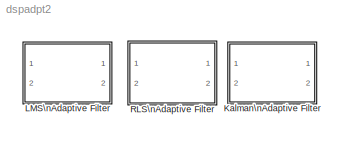
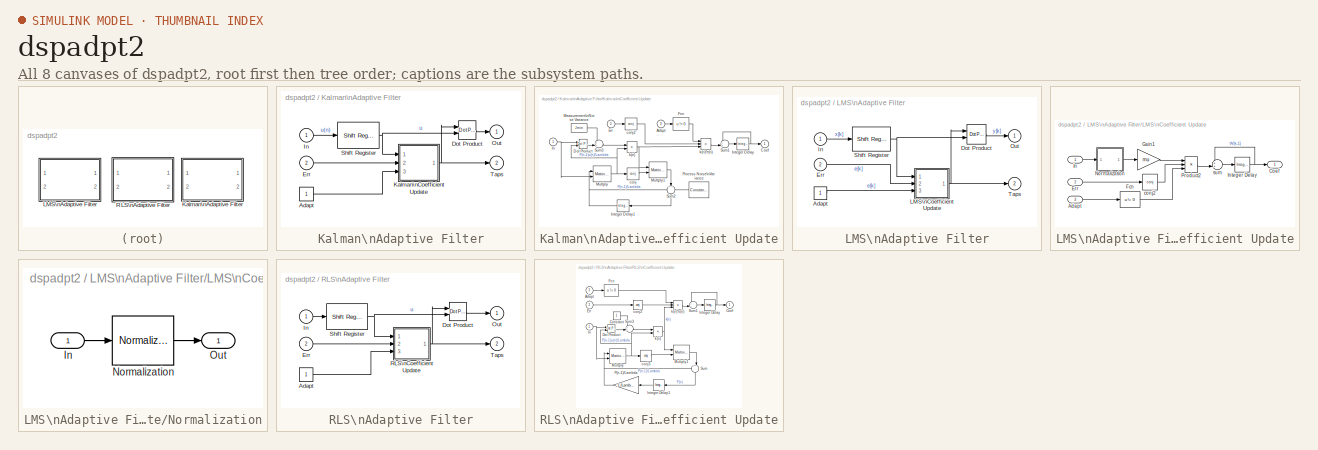
[diagram: thumbnail index - all 8 canvases of the model, root first then tree order]
MODEL dspadpt2
KIND library
BLOCK [SubSystem] Kalman\nAdaptive Filter
  MaskCallbackString = |||||
  MaskDescription = One-step Kalman predictor algorithm for adaptive FIR filtering of input signal.  If Adapt input checkbox is enabled, and the Adapt input port is zero, the algorithm stops adapting the filter coefficients.
  MaskDisplay = disp('Kalman')
  MaskEnableString = on,on,on,on,on,on
  MaskHelp = web(dspbhelp);
  MaskIconFrame = on
  MaskIconOpaque = off
  MaskIconRotate = none
  MaskIconUnits = autoscale
  MaskInitialization = if prod(size(ic0))==1, ic = ic0(ones(Ntaps,1)); else ic = ic0; end\nif prod(size(K0))==1, K = K0.*eye(Ntaps);\nelseif any(size(K0)==1), K = diag(K0);\nelse K=K0; end\ndspblkadpt('init');\n
  MaskPromptString = FIR filter length:|Measurement noise variance:|Process noise variance:|Initial value of filter taps:|Initial error correlation matrix:|Adapt input
  MaskSelfModifiable = on
  MaskStyleString = edit,edit,edit,edit,edit,checkbox
  MaskTunableValueString = off,on,on,off,off,on
  MaskType = Kalman Adaptive Filter
  MaskValueString = 5|0.3|0.1|0|0.5|off
  MaskVariables = Ntaps=@1;Jmin=@2;q=@3;ic0=@4;K0=@5;Adapt=@6;
  MaskVisibilityString = on,on,on,on,on,on
  Ports = [2, 2, 0, 0, 0]
  ShowPortLabels = on
BLOCK [Constant] Kalman\nAdaptive Filter/Adapt
  Value = 1
BLOCK [Reference] Kalman\nAdaptive Filter/Dot Product  REF=simulink3/Math/Dot Product
  Ports = [2, 1, 0, 0, 0]
  SourceBlock = simulink3/Math/Dot Product
  SourceType = Dot Product
BLOCK [Inport] Kalman\nAdaptive Filter/Err
  DataType = auto
  Interpolate = on
  Port = 2
  PortWidth = -1
  SampleTime = -1
  SignalType = auto
BLOCK [Inport] Kalman\nAdaptive Filter/In
  DataType = auto
  Interpolate = on
  Port = 1
  PortWidth = -1
  SampleTime = -1
  SignalType = auto
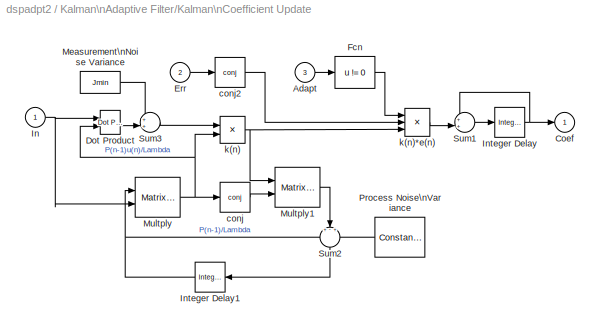
BLOCK [SubSystem] Kalman\nAdaptive Filter/Kalman\nCoefficient Update
  Ports = [3, 1, 0, 0, 0]
  ShowPortLabels = on
BLOCK [Inport] Kalman\nAdaptive Filter/Kalman\nCoefficient Update/Adapt
  DataType = auto
  Interpolate = on
  Port = 3
  PortWidth = -1
  SampleTime = -1
  SignalType = auto
BLOCK [Outport] Kalman\nAdaptive Filter/Kalman\nCoefficient Update/Coef
  InitialOutput = 0
  OutputWhenDisabled = held
  Port = 1
BLOCK [Reference] Kalman\nAdaptive Filter/Kalman\nCoefficient Update/Dot Product  REF=simulink3/Math/Dot Product
  Ports = [2, 1, 0, 0, 0]
  SourceBlock = simulink3/Math/Dot Product
  SourceType = Dot Product
BLOCK [Inport] Kalman\nAdaptive Filter/Kalman\nCoefficient Update/Err
  DataType = auto
  Interpolate = on
  Port = 2
  PortWidth = -1
  SampleTime = -1
  SignalType = auto
BLOCK [Fcn] Kalman\nAdaptive Filter/Kalman\nCoefficient Update/Fcn
  Expr = u != 0
BLOCK [Inport] Kalman\nAdaptive Filter/Kalman\nCoefficient Update/In
  DataType = auto
  Interpolate = on
  Port = 1
  PortWidth = -1
  SampleTime = -1
  SignalType = auto
BLOCK [Reference] Kalman\nAdaptive Filter/Kalman\nCoefficient Update/Integer Delay  REF=dspbdsp2/Integer Delay
  Ports = [1, 1, 0, 0, 0]
  SourceBlock = dspbdsp2/Integer Delay
  SourceType = Integer Delay
  delay = 1
  df = on
  frame = off
  ic = ic
  numChans = 1
BLOCK [Reference] Kalman\nAdaptive Filter/Kalman\nCoefficient Update/Integer Delay1  REF=dspbdsp2/Integer Delay
  Ports = [1, 1, 0, 0, 0]
  SourceBlock = dspbdsp2/Integer Delay
  SourceType = Integer Delay
  delay = 1
  df = on
  frame = off
  ic = K
  numChans = 1
BLOCK [Constant] Kalman\nAdaptive Filter/Kalman\nCoefficient Update/Measurement\nNoise Variance
  Value = Jmin
BLOCK [Reference] Kalman\nAdaptive Filter/Kalman\nCoefficient Update/Multply  REF=dspmtrx2/Matrix\nMultiplication
  Asize = [Ntaps Ntaps]
  Bcols = 1
  Ports = [2, 1, 0, 0, 0]
  SourceBlock = dspmtrx2/Matrix\nMultiplication
  SourceType = Matrix Multiplication
BLOCK [Reference] Kalman\nAdaptive Filter/Kalman\nCoefficient Update/Multply1  REF=dspmtrx2/Matrix\nMultiplication
  Asize = [Ntaps 1]
  Bcols = Ntaps
  Ports = [2, 1, 0, 0, 0]
  SourceBlock = dspmtrx2/Matrix\nMultiplication
  SourceType = Matrix Multiplication
BLOCK [Reference] Kalman\nAdaptive Filter/Kalman\nCoefficient Update/Process Noise\nVariance  REF=dspmtrx2/Constant Diagonal\nMatrix
  Ports = [0, 1, 0, 0, 0]
  SourceBlock = dspmtrx2/Constant Diagonal\nMatrix
  SourceType = Constant Diagonal Matrix
  n = Ntaps
  q = q
BLOCK [Sum] Kalman\nAdaptive Filter/Kalman\nCoefficient Update/Sum1
  IconShape = round
  Inputs = ++|
  Ports = [2, 1, 0, 0, 0]
  SaturateOnIntegerOverflow = on
BLOCK [Sum] Kalman\nAdaptive Filter/Kalman\nCoefficient Update/Sum2
  IconShape = round
  Inputs = +-+
  Ports = [3, 1, 0, 0, 0]
  SaturateOnIntegerOverflow = on
BLOCK [Sum] Kalman\nAdaptive Filter/Kalman\nCoefficient Update/Sum3
  IconShape = round
  Inputs = ++|
  Ports = [2, 1, 0, 0, 0]
  SaturateOnIntegerOverflow = on
BLOCK [Math] Kalman\nAdaptive Filter/Kalman\nCoefficient Update/conj
  Operator = conj
  OutputSignalType = auto
  Ports = [1, 1, 0, 0, 0]
BLOCK [Math] Kalman\nAdaptive Filter/Kalman\nCoefficient Update/conj2
  Operator = conj
  OutputSignalType = auto
  Ports = [1, 1, 0, 0, 0]
BLOCK [Product] Kalman\nAdaptive Filter/Kalman\nCoefficient Update/k(n)
  Inputs = /*
  Ports = [2, 1, 0, 0, 0]
  SaturateOnIntegerOverflow = on
BLOCK [Product] Kalman\nAdaptive Filter/Kalman\nCoefficient Update/k(n)*e(n)
  Inputs = 3
  Ports = [3, 1, 0, 0, 0]
  SaturateOnIntegerOverflow = on
BLOCK [Outport] Kalman\nAdaptive Filter/Out
  InitialOutput = 0
  OutputWhenDisabled = held
  Port = 1
BLOCK [Reference] Kalman\nAdaptive Filter/Shift Register  REF=dspbuff2/Shift Register
  Ports = [1, 1, 0, 0, 0]
  SourceBlock = dspbuff2/Shift Register
  SourceType = Shift Register
  ic = 0
  siz = Ntaps
BLOCK [Outport] Kalman\nAdaptive Filter/Taps
  InitialOutput = 0
  OutputWhenDisabled = held
  Port = 2
BLOCK [SubSystem] LMS\nAdaptive Filter
  MaskCallbackString = ||||
  MaskDescription = Least mean-square (LMS) algorithm for adaptive FIR filtering of input signal.  Energy normalization may optionally be disabled. If Adapt input checkbox is enabled, and the Adapt input port is zero, the algorithm stops adapting the filter coefficients.
  MaskDisplay = disp(s);
  MaskEnableString = on,on,on,on,on
  MaskHelp = web(dspbhelp);
  MaskIconFrame = on
  MaskIconOpaque = off
  MaskIconRotate = none
  MaskIconUnits = autoscale
  MaskInitialization = if normalized, s='nLMS'; else s='LMS'; end\ndspblkadpt('init');\n
  MaskPromptString = FIR filter length:|Step-size, mu:|Initial value of filter taps:|Use normalization|Adapt input
  MaskSelfModifiable = on
  MaskStyleString = edit,edit,edit,checkbox,checkbox
  MaskTunableValueString = off,on,off,off,on
  MaskType = LMS Adaptive Filter
  MaskValueString = 32|.65|0.0|on|off
  MaskVariables = n=@1;mu=@2;ic=@3;normalized=@4;Adapt=@5;
  MaskVisibilityString = on,on,on,on,on
  Ports = [2, 2, 0, 0, 0]
  ShowPortLabels = on
BLOCK [Constant] LMS\nAdaptive Filter/Adapt
  Value = 1
BLOCK [Reference] LMS\nAdaptive Filter/Dot Product  REF=simulink3/Math/Dot Product
  Ports = [2, 1, 0, 0, 0]
  SourceBlock = simulink3/Math/Dot Product
  SourceType = Dot Product
BLOCK [Inport] LMS\nAdaptive Filter/Err
  DataType = auto
  Interpolate = on
  Port = 2
  PortWidth = -1
  SampleTime = -1
  SignalType = auto
BLOCK [Inport] LMS\nAdaptive Filter/In
  DataType = auto
  Interpolate = on
  Port = 1
  PortWidth = -1
  SampleTime = -1
  SignalType = auto
BLOCK [SubSystem] LMS\nAdaptive Filter/LMS\nCoefficient Update
  Ports = [3, 1, 0, 0, 0]
  ShowPortLabels = on
BLOCK [Inport] LMS\nAdaptive Filter/LMS\nCoefficient Update/Adapt
  DataType = auto
  Interpolate = on
  Port = 3
  PortWidth = -1
  SampleTime = -1
  SignalType = auto
BLOCK [Outport] LMS\nAdaptive Filter/LMS\nCoefficient Update/Coef
  InitialOutput = 0
  OutputWhenDisabled = held
  Port = 1
BLOCK [Inport] LMS\nAdaptive Filter/LMS\nCoefficient Update/Err
  DataType = auto
  Interpolate = on
  Port = 2
  PortWidth = -1
  SampleTime = -1
  SignalType = auto
BLOCK [Fcn] LMS\nAdaptive Filter/LMS\nCoefficient Update/Fcn
  Expr = u != 0
BLOCK [Gain] LMS\nAdaptive Filter/LMS\nCoefficient Update/Gain1
  Gain = mu
  SaturateOnIntegerOverflow = on
BLOCK [Inport] LMS\nAdaptive Filter/LMS\nCoefficient Update/In
  DataType = auto
  Interpolate = on
  Port = 1
  PortWidth = -1
  SampleTime = -1
  SignalType = auto
BLOCK [Reference] LMS\nAdaptive Filter/LMS\nCoefficient Update/Integer Delay  REF=dspbdsp2/Integer Delay
  Ports = [1, 1, 0, 0, 0]
  SourceBlock = dspbdsp2/Integer Delay
  SourceType = Integer Delay
  delay = 1
  df = on
  frame = off
  ic = ic
  numChans = 1
BLOCK [SubSystem] LMS\nAdaptive Filter/LMS\nCoefficient Update/Normalization
  MaskCallbackString = |||
  MaskDescription = Configurable subsystem holding blocks which may be replaced by virtual short-circuits (muxes) when not needed.
  MaskEnableString = on,on,on,on
  MaskHelp = \n
  MaskIconFrame = on
  MaskIconOpaque = on
  MaskIconRotate = none
  MaskIconUnits = autoscale
  MaskInitialization = opts.name = oname; opts.src = osrc; opts.args = oargs;\ndspskipblk(gcb,opts,replace);\n
  MaskPromptString = Relative name of blocks to replace:|Simulink path to each source block:|Parameter/value pairs to each block:|Replace with short-circuit:
  MaskSelfModifiable = on
  MaskStyleString = edit,edit,edit,edit
  MaskTunableValueString = off,off,off,off
  MaskType = Replaceable Contents
  MaskValueString = Normalization|dspvect2/Normalization|{'NormType','Squared 2-norm','Bias','1e-10'}|~normalized
  MaskVariables = oname=&1;osrc=&2;oargs=@3;replace=@4;
  MaskVisibilityString = on,on,on,on
  Ports = [1, 1, 0, 0, 0]
  ShowPortLabels = on
BLOCK [Inport] LMS\nAdaptive Filter/LMS\nCoefficient Update/Normalization/In
  DataType = auto
  Interpolate = on
  Port = 1
  PortWidth = -1
  SampleTime = -1
  SignalType = auto
BLOCK [Reference] LMS\nAdaptive Filter/LMS\nCoefficient Update/Normalization/Normalization  REF=dspvect2/Normalization
  Bias = 1e-10
  NormType = Squared 2-norm
  Ports = [1, 1, 0, 0, 0]
  SourceBlock = dspvect2/Normalization
  SourceType = Normalization
BLOCK [Outport] LMS\nAdaptive Filter/LMS\nCoefficient Update/Normalization/Out
  InitialOutput = 0
  OutputWhenDisabled = held
  Port = 1
BLOCK [Product] LMS\nAdaptive Filter/LMS\nCoefficient Update/Product2
  Inputs = 3
  Ports = [3, 1, 0, 0, 0]
  SaturateOnIntegerOverflow = on
BLOCK [Math] LMS\nAdaptive Filter/LMS\nCoefficient Update/conj2
  Operator = conj
  OutputSignalType = auto
  Ports = [1, 1, 0, 0, 0]
BLOCK [Sum] LMS\nAdaptive Filter/LMS\nCoefficient Update/sum
  IconShape = round
  Inputs = ++|
  Ports = [2, 1, 0, 0, 0]
  SaturateOnIntegerOverflow = on
BLOCK [Outport] LMS\nAdaptive Filter/Out
  InitialOutput = 0
  OutputWhenDisabled = held
  Port = 1
BLOCK [Reference] LMS\nAdaptive Filter/Shift Register  REF=dspbuff2/Shift Register
  Ports = [1, 1, 0, 0, 0]
  SourceBlock = dspbuff2/Shift Register
  SourceType = Shift Register
  ic = 0
  siz = n
BLOCK [Outport] LMS\nAdaptive Filter/Taps
  InitialOutput = 0
  OutputWhenDisabled = held
  Port = 2
BLOCK [SubSystem] RLS\nAdaptive Filter
  MaskCallbackString = ||||
  MaskDescription = Exponentially weighted recursive least-squares (RLS) algorithm for adaptive FIR filtering of input signal. If Adapt input checkbox is enabled, and the Adapt input port is zero, the algorithm stops adapting the filter coefficients.
  MaskDisplay = disp('RLS')
  MaskEnableString = on,on,on,on,on
  MaskHelp = web(dspbhelp);
  MaskIconFrame = on
  MaskIconOpaque = off
  MaskIconRotate = none
  MaskIconUnits = autoscale
  MaskInitialization = dspblkadpt('init');\n
  MaskPromptString = FIR filter length:|Memory weighting factor (0 to 1):|Initial value of filter taps:|Initial input variance estimate:|Adapt input
  MaskSelfModifiable = on
  MaskStyleString = edit,edit,edit,edit,checkbox
  MaskTunableValueString = off,on,off,off,on
  MaskType = RLS Adaptive Filter
  MaskValueString = 32|1.0|0.0|0.1|off
  MaskVariables = Ntaps=@1;Lambda=@2;ic=@3;phi0=@4;Adapt=@5;
  MaskVisibilityString = on,on,on,on,on
  Ports = [2, 2, 0, 0, 0]
  ShowPortLabels = on
BLOCK [Constant] RLS\nAdaptive Filter/Adapt
  Value = 1
BLOCK [Reference] RLS\nAdaptive Filter/Dot Product  REF=simulink3/Math/Dot Product
  Ports = [2, 1, 0, 0, 0]
  SourceBlock = simulink3/Math/Dot Product
  SourceType = Dot Product
BLOCK [Inport] RLS\nAdaptive Filter/Err
  DataType = auto
  Interpolate = on
  Port = 2
  PortWidth = -1
  SampleTime = -1
  SignalType = auto
BLOCK [Inport] RLS\nAdaptive Filter/In
  DataType = auto
  Interpolate = on
  Port = 1
  PortWidth = -1
  SampleTime = -1
  SignalType = auto
BLOCK [Outport] RLS\nAdaptive Filter/Out
  InitialOutput = 0
  OutputWhenDisabled = held
  Port = 1
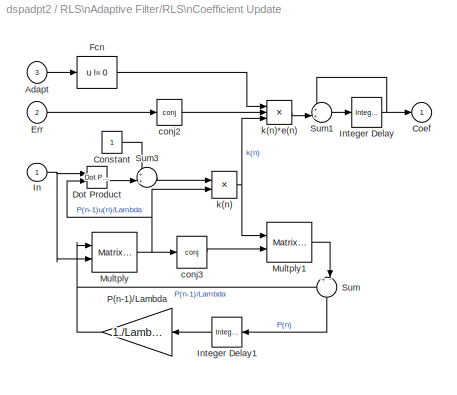
BLOCK [SubSystem] RLS\nAdaptive Filter/RLS\nCoefficient Update
  Ports = [3, 1, 0, 0, 0]
  ShowPortLabels = on
BLOCK [Inport] RLS\nAdaptive Filter/RLS\nCoefficient Update/Adapt
  DataType = auto
  Interpolate = on
  Port = 3
  PortWidth = -1
  SampleTime = -1
  SignalType = auto
BLOCK [Outport] RLS\nAdaptive Filter/RLS\nCoefficient Update/Coef
  InitialOutput = 0
  OutputWhenDisabled = held
  Port = 1
BLOCK [Constant] RLS\nAdaptive Filter/RLS\nCoefficient Update/Constant
  Value = 1
BLOCK [Reference] RLS\nAdaptive Filter/RLS\nCoefficient Update/Dot Product  REF=simulink3/Math/Dot Product
  Ports = [2, 1, 0, 0, 0]
  SourceBlock = simulink3/Math/Dot Product
  SourceType = Dot Product
BLOCK [Inport] RLS\nAdaptive Filter/RLS\nCoefficient Update/Err
  DataType = auto
  Interpolate = on
  Port = 2
  PortWidth = -1
  SampleTime = -1
  SignalType = auto
BLOCK [Fcn] RLS\nAdaptive Filter/RLS\nCoefficient Update/Fcn
  Expr = u != 0
BLOCK [Inport] RLS\nAdaptive Filter/RLS\nCoefficient Update/In
  DataType = auto
  Interpolate = on
  Port = 1
  PortWidth = -1
  SampleTime = -1
  SignalType = auto
BLOCK [Reference] RLS\nAdaptive Filter/RLS\nCoefficient Update/Integer Delay  REF=dspbdsp2/Integer Delay
  Ports = [1, 1, 0, 0, 0]
  SourceBlock = dspbdsp2/Integer Delay
  SourceType = Integer Delay
  delay = 1
  df = on
  frame = off
  ic = ic
  numChans = 1
BLOCK [Reference] RLS\nAdaptive Filter/RLS\nCoefficient Update/Integer Delay1  REF=dspbdsp2/Integer Delay
  Ports = [1, 1, 0, 0, 0]
  SourceBlock = dspbdsp2/Integer Delay
  SourceType = Integer Delay
  delay = 1
  df = on
  frame = off
  ic = eye(Ntaps)./phi0
  numChans = 1
BLOCK [Reference] RLS\nAdaptive Filter/RLS\nCoefficient Update/Multply  REF=dspmtrx2/Matrix\nMultiplication
  Asize = [Ntaps Ntaps]
  Bcols = 1
  Ports = [2, 1, 0, 0, 0]
  SourceBlock = dspmtrx2/Matrix\nMultiplication
  SourceType = Matrix Multiplication
BLOCK [Reference] RLS\nAdaptive Filter/RLS\nCoefficient Update/Multply1  REF=dspmtrx2/Matrix\nMultiplication
  Asize = [Ntaps 1]
  Bcols = Ntaps
  Ports = [2, 1, 0, 0, 0]
  SourceBlock = dspmtrx2/Matrix\nMultiplication
  SourceType = Matrix Multiplication
BLOCK [Gain] RLS\nAdaptive Filter/RLS\nCoefficient Update/P(n-1)//Lambda
  Gain = 1./Lambda
  SaturateOnIntegerOverflow = on
BLOCK [Sum] RLS\nAdaptive Filter/RLS\nCoefficient Update/Sum
  IconShape = round
  Inputs = +-|
  Ports = [2, 1, 0, 0, 0]
  SaturateOnIntegerOverflow = on
BLOCK [Sum] RLS\nAdaptive Filter/RLS\nCoefficient Update/Sum1
  IconShape = round
  Inputs = ++|
  Ports = [2, 1, 0, 0, 0]
  SaturateOnIntegerOverflow = on
BLOCK [Sum] RLS\nAdaptive Filter/RLS\nCoefficient Update/Sum3
  IconShape = round
  Inputs = ++|
  Ports = [2, 1, 0, 0, 0]
  SaturateOnIntegerOverflow = on
BLOCK [Math] RLS\nAdaptive Filter/RLS\nCoefficient Update/conj2
  Operator = conj
  OutputSignalType = auto
  Ports = [1, 1, 0, 0, 0]
BLOCK [Math] RLS\nAdaptive Filter/RLS\nCoefficient Update/conj3
  Operator = conj
  OutputSignalType = auto
  Ports = [1, 1, 0, 0, 0]
BLOCK [Product] RLS\nAdaptive Filter/RLS\nCoefficient Update/k(n)
  Inputs = /*
  Ports = [2, 1, 0, 0, 0]
  SaturateOnIntegerOverflow = on
BLOCK [Product] RLS\nAdaptive Filter/RLS\nCoefficient Update/k(n)*e(n)
  Inputs = 3
  Ports = [3, 1, 0, 0, 0]
  SaturateOnIntegerOverflow = on
BLOCK [Reference] RLS\nAdaptive Filter/Shift Register  REF=dspbuff2/Shift Register
  Ports = [1, 1, 0, 0, 0]
  SourceBlock = dspbuff2/Shift Register
  SourceType = Shift Register
  ic = 0
  siz = Ntaps
BLOCK [Outport] RLS\nAdaptive Filter/Taps
  InitialOutput = 0
  OutputWhenDisabled = held
  Port = 2
LINE Kalman\nAdaptive Filter/Adapt:1 -> Kalman\nAdaptive Filter/Kalman\nCoefficient Update:3
LINE Kalman\nAdaptive Filter/Dot Product:1 -> Kalman\nAdaptive Filter/Out:1
LINE Kalman\nAdaptive Filter/Err:1 -> Kalman\nAdaptive Filter/Kalman\nCoefficient Update:2
LINE Kalman\nAdaptive Filter/In:1 -> Kalman\nAdaptive Filter/Shift Register:1
LINE Kalman\nAdaptive Filter/Kalman\nCoefficient Update/Adapt:1 -> Kalman\nAdaptive Filter/Kalman\nCoefficient Update/Fcn:1
LINE Kalman\nAdaptive Filter/Kalman\nCoefficient Update/Dot Product:1 -> Kalman\nAdaptive Filter/Kalman\nCoefficient Update/Sum3:2
LINE Kalman\nAdaptive Filter/Kalman\nCoefficient Update/Err:1 -> Kalman\nAdaptive Filter/Kalman\nCoefficient Update/conj2:1
LINE Kalman\nAdaptive Filter/Kalman\nCoefficient Update/Fcn:1 -> Kalman\nAdaptive Filter/Kalman\nCoefficient Update/k(n)*e(n):1
NET Kalman\nAdaptive Filter/Kalman\nCoefficient Update/In:1 -> Kalman\nAdaptive Filter/Kalman\nCoefficient Update/Dot Product:1, Kalman\nAdaptive Filter/Kalman\nCoefficient Update/Multply:2
NET Kalman\nAdaptive Filter/Kalman\nCoefficient Update/Integer Delay1:1 -> Kalman\nAdaptive Filter/Kalman\nCoefficient Update/Multply:1, Kalman\nAdaptive Filter/Kalman\nCoefficient Update/Sum2:1
NET Kalman\nAdaptive Filter/Kalman\nCoefficient Update/Integer Delay:1 -> Kalman\nAdaptive Filter/Kalman\nCoefficient Update/Coef:1, Kalman\nAdaptive Filter/Kalman\nCoefficient Update/Sum1:1
LINE Kalman\nAdaptive Filter/Kalman\nCoefficient Update/Measurement\nNoise Variance:1 -> Kalman\nAdaptive Filter/Kalman\nCoefficient Update/Sum3:1
LINE Kalman\nAdaptive Filter/Kalman\nCoefficient Update/Multply1:1 -> Kalman\nAdaptive Filter/Kalman\nCoefficient Update/Sum2:2
NET Kalman\nAdaptive Filter/Kalman\nCoefficient Update/Multply:1 -> Kalman\nAdaptive Filter/Kalman\nCoefficient Update/Dot Product:2, Kalman\nAdaptive Filter/Kalman\nCoefficient Update/conj:1, Kalman\nAdaptive Filter/Kalman\nCoefficient Update/k(n):2
LINE Kalman\nAdaptive Filter/Kalman\nCoefficient Update/Process Noise\nVariance:1 -> Kalman\nAdaptive Filter/Kalman\nCoefficient Update/Sum2:3
LINE Kalman\nAdaptive Filter/Kalman\nCoefficient Update/Sum1:1 -> Kalman\nAdaptive Filter/Kalman\nCoefficient Update/Integer Delay:1
LINE Kalman\nAdaptive Filter/Kalman\nCoefficient Update/Sum2:1 -> Kalman\nAdaptive Filter/Kalman\nCoefficient Update/Integer Delay1:1
LINE Kalman\nAdaptive Filter/Kalman\nCoefficient Update/Sum3:1 -> Kalman\nAdaptive Filter/Kalman\nCoefficient Update/k(n):1
LINE Kalman\nAdaptive Filter/Kalman\nCoefficient Update/conj2:1 -> Kalman\nAdaptive Filter/Kalman\nCoefficient Update/k(n)*e(n):2
LINE Kalman\nAdaptive Filter/Kalman\nCoefficient Update/conj:1 -> Kalman\nAdaptive Filter/Kalman\nCoefficient Update/Multply1:2
LINE Kalman\nAdaptive Filter/Kalman\nCoefficient Update/k(n)*e(n):1 -> Kalman\nAdaptive Filter/Kalman\nCoefficient Update/Sum1:2
NET Kalman\nAdaptive Filter/Kalman\nCoefficient Update/k(n):1 -> Kalman\nAdaptive Filter/Kalman\nCoefficient Update/Multply1:1, Kalman\nAdaptive Filter/Kalman\nCoefficient Update/k(n)*e(n):3
NET Kalman\nAdaptive Filter/Kalman\nCoefficient Update:1 -> Kalman\nAdaptive Filter/Dot Product:1, Kalman\nAdaptive Filter/Taps:1
NET Kalman\nAdaptive Filter/Shift Register:1 -> Kalman\nAdaptive Filter/Dot Product:2, Kalman\nAdaptive Filter/Kalman\nCoefficient Update:1
LINE LMS\nAdaptive Filter/Adapt:1 -> LMS\nAdaptive Filter/LMS\nCoefficient Update:3
LINE LMS\nAdaptive Filter/Dot Product:1 -> LMS\nAdaptive Filter/Out:1
LINE LMS\nAdaptive Filter/Err:1 -> LMS\nAdaptive Filter/LMS\nCoefficient Update:2
LINE LMS\nAdaptive Filter/In:1 -> LMS\nAdaptive Filter/Shift Register:1
LINE LMS\nAdaptive Filter/LMS\nCoefficient Update/Adapt:1 -> LMS\nAdaptive Filter/LMS\nCoefficient Update/Fcn:1
LINE LMS\nAdaptive Filter/LMS\nCoefficient Update/Err:1 -> LMS\nAdaptive Filter/LMS\nCoefficient Update/conj2:1
LINE LMS\nAdaptive Filter/LMS\nCoefficient Update/Fcn:1 -> LMS\nAdaptive Filter/LMS\nCoefficient Update/Product2:3
LINE LMS\nAdaptive Filter/LMS\nCoefficient Update/Gain1:1 -> LMS\nAdaptive Filter/LMS\nCoefficient Update/Product2:1
LINE LMS\nAdaptive Filter/LMS\nCoefficient Update/In:1 -> LMS\nAdaptive Filter/LMS\nCoefficient Update/Normalization:1
NET LMS\nAdaptive Filter/LMS\nCoefficient Update/Integer Delay:1 -> LMS\nAdaptive Filter/LMS\nCoefficient Update/Coef:1, LMS\nAdaptive Filter/LMS\nCoefficient Update/sum:1
LINE LMS\nAdaptive Filter/LMS\nCoefficient Update/Normalization/In:1 -> LMS\nAdaptive Filter/LMS\nCoefficient Update/Normalization/Normalization:1
LINE LMS\nAdaptive Filter/LMS\nCoefficient Update/Normalization/Normalization:1 -> LMS\nAdaptive Filter/LMS\nCoefficient Update/Normalization/Out:1
LINE LMS\nAdaptive Filter/LMS\nCoefficient Update/Normalization:1 -> LMS\nAdaptive Filter/LMS\nCoefficient Update/Gain1:1
LINE LMS\nAdaptive Filter/LMS\nCoefficient Update/Product2:1 -> LMS\nAdaptive Filter/LMS\nCoefficient Update/sum:2
LINE LMS\nAdaptive Filter/LMS\nCoefficient Update/conj2:1 -> LMS\nAdaptive Filter/LMS\nCoefficient Update/Product2:2
LINE LMS\nAdaptive Filter/LMS\nCoefficient Update/sum:1 -> LMS\nAdaptive Filter/LMS\nCoefficient Update/Integer Delay:1
NET LMS\nAdaptive Filter/LMS\nCoefficient Update:1 -> LMS\nAdaptive Filter/Dot Product:1, LMS\nAdaptive Filter/Taps:1
NET LMS\nAdaptive Filter/Shift Register:1 -> LMS\nAdaptive Filter/Dot Product:2, LMS\nAdaptive Filter/LMS\nCoefficient Update:1
LINE RLS\nAdaptive Filter/Adapt:1 -> RLS\nAdaptive Filter/RLS\nCoefficient Update:3
LINE RLS\nAdaptive Filter/Dot Product:1 -> RLS\nAdaptive Filter/Out:1
LINE RLS\nAdaptive Filter/Err:1 -> RLS\nAdaptive Filter/RLS\nCoefficient Update:2
LINE RLS\nAdaptive Filter/In:1 -> RLS\nAdaptive Filter/Shift Register:1
LINE RLS\nAdaptive Filter/RLS\nCoefficient Update/Adapt:1 -> RLS\nAdaptive Filter/RLS\nCoefficient Update/Fcn:1
LINE RLS\nAdaptive Filter/RLS\nCoefficient Update/Constant:1 -> RLS\nAdaptive Filter/RLS\nCoefficient Update/Sum3:1
LINE RLS\nAdaptive Filter/RLS\nCoefficient Update/Dot Product:1 -> RLS\nAdaptive Filter/RLS\nCoefficient Update/Sum3:2
LINE RLS\nAdaptive Filter/RLS\nCoefficient Update/Err:1 -> RLS\nAdaptive Filter/RLS\nCoefficient Update/conj2:1
LINE RLS\nAdaptive Filter/RLS\nCoefficient Update/Fcn:1 -> RLS\nAdaptive Filter/RLS\nCoefficient Update/k(n)*e(n):1
NET RLS\nAdaptive Filter/RLS\nCoefficient Update/In:1 -> RLS\nAdaptive Filter/RLS\nCoefficient Update/Dot Product:1, RLS\nAdaptive Filter/RLS\nCoefficient Update/Multply:2
LINE RLS\nAdaptive Filter/RLS\nCoefficient Update/Integer Delay1:1 -> RLS\nAdaptive Filter/RLS\nCoefficient Update/P(n-1)//Lambda:1
NET RLS\nAdaptive Filter/RLS\nCoefficient Update/Integer Delay:1 -> RLS\nAdaptive Filter/RLS\nCoefficient Update/Coef:1, RLS\nAdaptive Filter/RLS\nCoefficient Update/Sum1:1
LINE RLS\nAdaptive Filter/RLS\nCoefficient Update/Multply1:1 -> RLS\nAdaptive Filter/RLS\nCoefficient Update/Sum:2
NET RLS\nAdaptive Filter/RLS\nCoefficient Update/Multply:1 -> RLS\nAdaptive Filter/RLS\nCoefficient Update/Dot Product:2, RLS\nAdaptive Filter/RLS\nCoefficient Update/conj3:1, RLS\nAdaptive Filter/RLS\nCoefficient Update/k(n):2
NET RLS\nAdaptive Filter/RLS\nCoefficient Update/P(n-1)//Lambda:1 -> RLS\nAdaptive Filter/RLS\nCoefficient Update/Multply:1, RLS\nAdaptive Filter/RLS\nCoefficient Update/Sum:1
LINE RLS\nAdaptive Filter/RLS\nCoefficient Update/Sum1:1 -> RLS\nAdaptive Filter/RLS\nCoefficient Update/Integer Delay:1
LINE RLS\nAdaptive Filter/RLS\nCoefficient Update/Sum3:1 -> RLS\nAdaptive Filter/RLS\nCoefficient Update/k(n):1
LINE RLS\nAdaptive Filter/RLS\nCoefficient Update/Sum:1 -> RLS\nAdaptive Filter/RLS\nCoefficient Update/Integer Delay1:1
LINE RLS\nAdaptive Filter/RLS\nCoefficient Update/conj2:1 -> RLS\nAdaptive Filter/RLS\nCoefficient Update/k(n)*e(n):2
LINE RLS\nAdaptive Filter/RLS\nCoefficient Update/conj3:1 -> RLS\nAdaptive Filter/RLS\nCoefficient Update/Multply1:2
LINE RLS\nAdaptive Filter/RLS\nCoefficient Update/k(n)*e(n):1 -> RLS\nAdaptive Filter/RLS\nCoefficient Update/Sum1:2
NET RLS\nAdaptive Filter/RLS\nCoefficient Update/k(n):1 -> RLS\nAdaptive Filter/RLS\nCoefficient Update/Multply1:1, RLS\nAdaptive Filter/RLS\nCoefficient Update/k(n)*e(n):3
NET RLS\nAdaptive Filter/RLS\nCoefficient Update:1 -> RLS\nAdaptive Filter/Dot Product:1, RLS\nAdaptive Filter/Taps:1
NET RLS\nAdaptive Filter/Shift Register:1 -> RLS\nAdaptive Filter/Dot Product:2, RLS\nAdaptive Filter/RLS\nCoefficient Update:1
note: NET lines group one-source signal fan-out (src -> all destinations, sorted); 1:1 wires keep LINE
